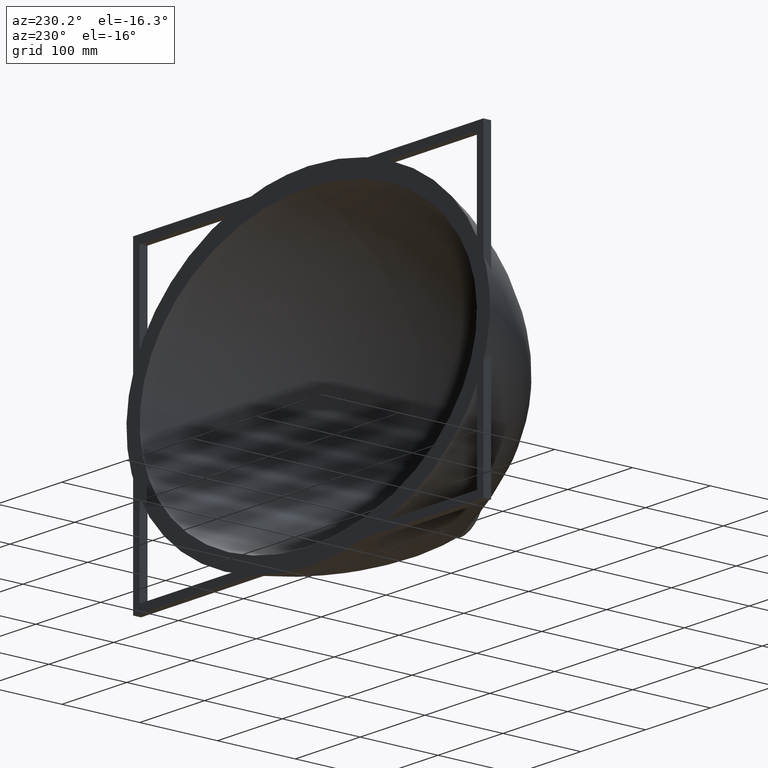
[diagram: clean part render]
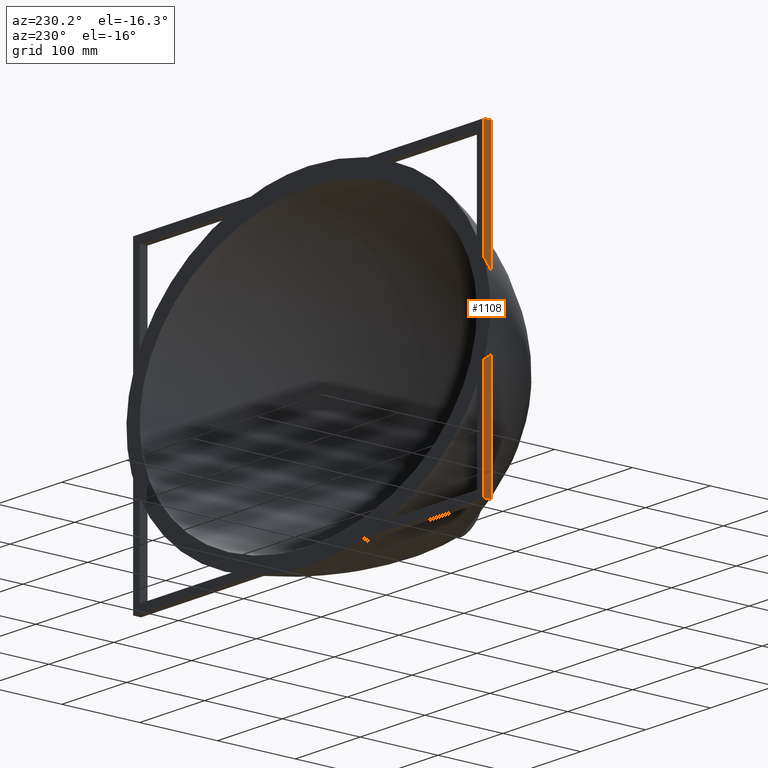
[diagram: same view with one face highlighted and labeled with its STEP entity id]
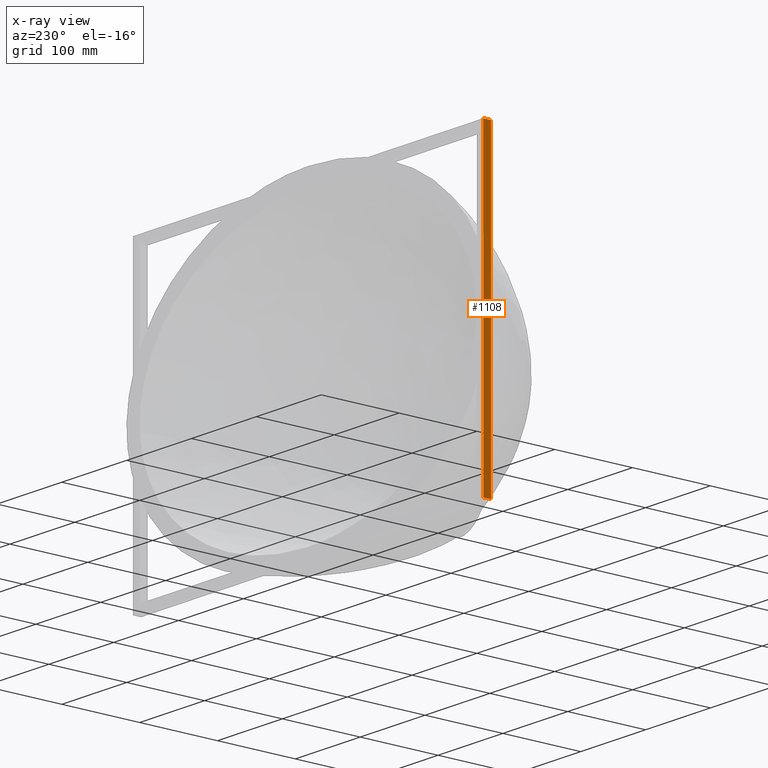
[diagram: x-ray of the same camera — body ghosted, the highlighted face saturated]
A machine part, auxiliary view. The second image highlights one B-rep face of the part: STEP entity #1108.
The next image is the same camera in x-ray: the body ghosted, the highlighted face saturated — about 0% of this face is hidden behind the body in this view.
In plain terms, the highlighted planar face has unit normal (-1, 0, 0).
Its self-contained STEP definition (entity closure, byte-faithful):
#3 = VERTEX_POINT ( 'NONE', #4204 ) ;
#191 = LINE ( 'NONE', #4614, #328 ) ;
#328 = VECTOR ( 'NONE', #4393, 1000.000000000000000 ) ;
#886 = EDGE_CURVE ( 'NONE', #2417, #2832, #5292, .T. ) ;
#963 = ORIENTED_EDGE ( 'NONE', *, *, #3009, .T. ) ;
#1076 = DIRECTION ( 'NONE',  ( 0.0000000000000000000, 0.0000000000000000000, 1.000000000000000000 ) ) ;
#1108 = ADVANCED_FACE ( 'NONE', ( #5079 ), #3733, .T. ) ;
#1165 = CARTESIAN_POINT ( 'NONE',  ( -270.0000000000000000, -10.00000000000000000, -195.0000000000000000 ) ) ;
#1351 = VERTEX_POINT ( 'NONE', #2117 ) ;
#1617 = ORIENTED_EDGE ( 'NONE', *, *, #886, .T. ) ;
#1850 = EDGE_LOOP ( 'NONE', ( #2105, #2175, #963, #1617 ) ) ;
#1937 = CARTESIAN_POINT ( 'NONE',  ( -270.0000000000000000, 0.0000000000000000000, 195.0000000000000000 ) ) ;
#2099 = EDGE_CURVE ( 'NONE', #1351, #2832, #4419, .T. ) ;
#2105 = ORIENTED_EDGE ( 'NONE', *, *, #2099, .F. ) ;
#2117 = CARTESIAN_POINT ( 'NONE',  ( -270.0000000000000000, 0.0000000000000000000, -195.0000000000000000 ) ) ;
#2175 = ORIENTED_EDGE ( 'NONE', *, *, #4290, .F. ) ;
#2417 = VERTEX_POINT ( 'NONE', #3705 ) ;
#2832 = VERTEX_POINT ( 'NONE', #1937 ) ;
#3009 = EDGE_CURVE ( 'NONE', #3, #2417, #4208, .T. ) ;
#3669 = CARTESIAN_POINT ( 'NONE',  ( -270.0000000000000000, -10.00000000000000000, 195.0000000000000000 ) ) ;
#3684 = CARTESIAN_POINT ( 'NONE',  ( -270.0000000000000000, -10.00000000000000000, -195.0000000000000000 ) ) ;
#3705 = CARTESIAN_POINT ( 'NONE',  ( -270.0000000000000000, -10.00000000000000000, 195.0000000000000000 ) ) ;
#3709 = DIRECTION ( 'NONE',  ( -1.000000000000000000, 0.0000000000000000000, 0.0000000000000000000 ) ) ;
#3724 = DIRECTION ( 'NONE',  ( 0.0000000000000000000, 0.0000000000000000000, 1.000000000000000000 ) ) ;
#3733 = PLANE ( 'NONE',  #4870 ) ;
#3864 = DIRECTION ( 'NONE',  ( 0.0000000000000000000, 1.000000000000000000, 0.0000000000000000000 ) ) ;
#4080 = VECTOR ( 'NONE', #1076, 1000.000000000000000 ) ;
#4204 = CARTESIAN_POINT ( 'NONE',  ( -270.0000000000000000, -10.00000000000000000, -195.0000000000000000 ) ) ;
#4208 = LINE ( 'NONE', #1165, #4080 ) ;
#4290 = EDGE_CURVE ( 'NONE', #3, #1351, #191, .T. ) ;
#4294 = VECTOR ( 'NONE', #4661, 1000.000000000000000 ) ;
#4393 = DIRECTION ( 'NONE',  ( 0.0000000000000000000, 1.000000000000000000, 0.0000000000000000000 ) ) ;
#4419 = LINE ( 'NONE', #4608, #4294 ) ;
#4608 = CARTESIAN_POINT ( 'NONE',  ( -270.0000000000000000, 0.0000000000000000000, -195.0000000000000000 ) ) ;
#4614 = CARTESIAN_POINT ( 'NONE',  ( -270.0000000000000000, -10.00000000000000000, -195.0000000000000000 ) ) ;
#4661 = DIRECTION ( 'NONE',  ( 0.0000000000000000000, 0.0000000000000000000, 1.000000000000000000 ) ) ;
#4870 = AXIS2_PLACEMENT_3D ( 'NONE', #3684, #3709, #3724 ) ;
#5079 = FACE_OUTER_BOUND ( 'NONE', #1850, .T. ) ;
#5292 = LINE ( 'NONE', #3669, #5351 ) ;
#5351 = VECTOR ( 'NONE', #3864, 1000.000000000000000 ) ;